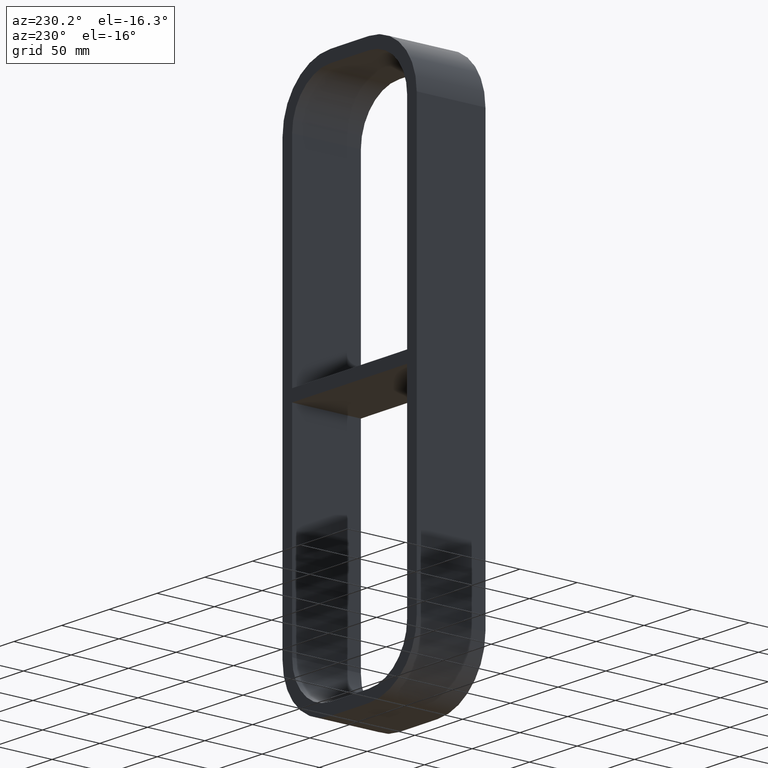
[diagram: clean part render]
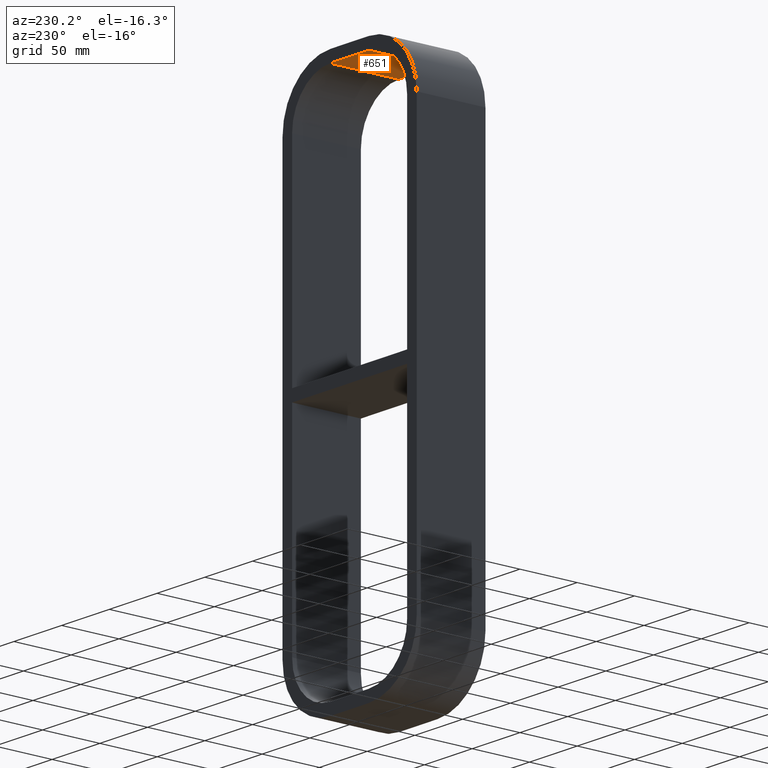
[diagram: same view with one face highlighted and labeled with its STEP entity id]
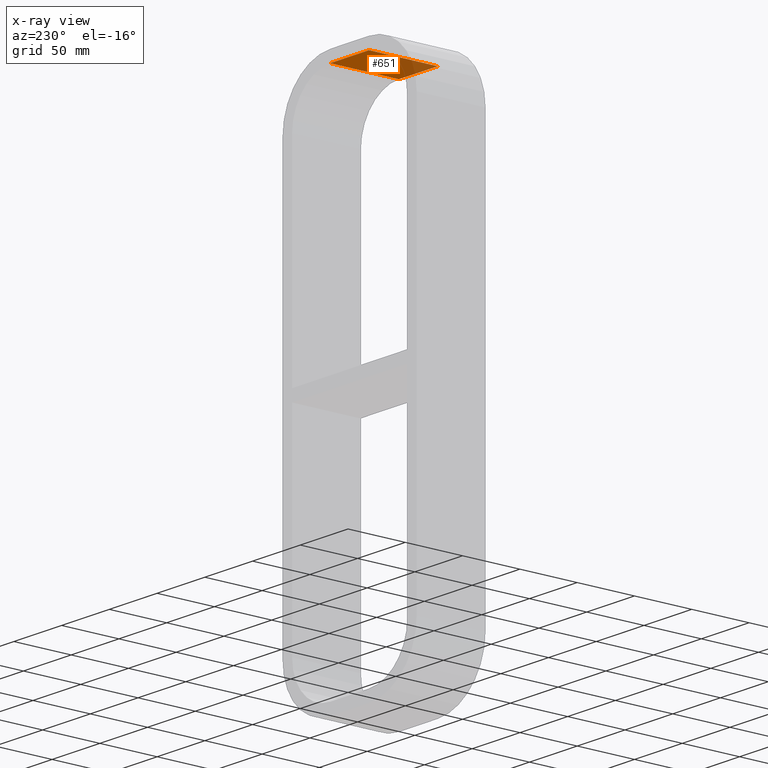
[diagram: x-ray of the same camera — body ghosted, the highlighted face saturated]
A machine part, auxiliary view. The second image highlights one B-rep face of the part: STEP entity #651.
The next image is the same camera in x-ray: the body ghosted, the highlighted face saturated — about 24% of this face is hidden behind the body in this view.
In plain terms, the highlighted planar face has unit normal (0, 0, 1).
Its self-contained STEP definition (entity closure, byte-faithful):
#349=CARTESIAN_POINT('',(-20.250000000000014,-3.0,223.0));
#350=VERTEX_POINT('',#349);
#358=CARTESIAN_POINT('',(20.250000000000004,-3.0,223.0));
#359=VERTEX_POINT('',#358);
#360=CARTESIAN_POINT('',(-20.250000000000014,-3.0,223.0));
#361=DIRECTION('',(1.0,0.0,0.0));
#362=VECTOR('',#361,40.500000000000014);
#363=LINE('',#360,#362);
#364=EDGE_CURVE('',#350,#359,#363,.T.);
#568=CARTESIAN_POINT('',(-20.250000000000014,57.0,223.0));
#569=VERTEX_POINT('',#568);
#577=CARTESIAN_POINT('',(-20.250000000000014,57.0,223.0));
#578=DIRECTION('',(0.0,-1.0,0.0));
#579=VECTOR('',#578,60.0);
#580=LINE('',#577,#579);
#581=EDGE_CURVE('',#569,#350,#580,.T.);
#616=CARTESIAN_POINT('',(20.250000000000004,57.0,223.0));
#617=VERTEX_POINT('',#616);
#618=CARTESIAN_POINT('',(20.25,-3.0,223.0));
#619=DIRECTION('',(0.0,1.0,0.0));
#620=VECTOR('',#619,60.0);
#621=LINE('',#618,#620);
#622=EDGE_CURVE('',#359,#617,#621,.T.);
#635=CARTESIAN_POINT('',(-60.250000000000014,0.0,223.0));
#636=DIRECTION('',(0.0,0.0,1.0));
#637=DIRECTION('',(1.0,0.0,0.0));
#638=AXIS2_PLACEMENT_3D('',#635,#636,#637);
#639=PLANE('',#638);
#640=ORIENTED_EDGE('',*,*,#581,.F.);
#641=CARTESIAN_POINT('',(20.250000000000004,57.0,223.0));
#642=DIRECTION('',(-1.0,0.0,0.0));
#643=VECTOR('',#642,40.500000000000014);
#644=LINE('',#641,#643);
#645=EDGE_CURVE('',#617,#569,#644,.T.);
#646=ORIENTED_EDGE('',*,*,#645,.F.);
#647=ORIENTED_EDGE('',*,*,#622,.F.);
#648=ORIENTED_EDGE('',*,*,#364,.F.);
#649=EDGE_LOOP('',(#640,#646,#647,#648));
#650=FACE_OUTER_BOUND('',#649,.T.);
#651=ADVANCED_FACE('',(#650),#639,.F.);